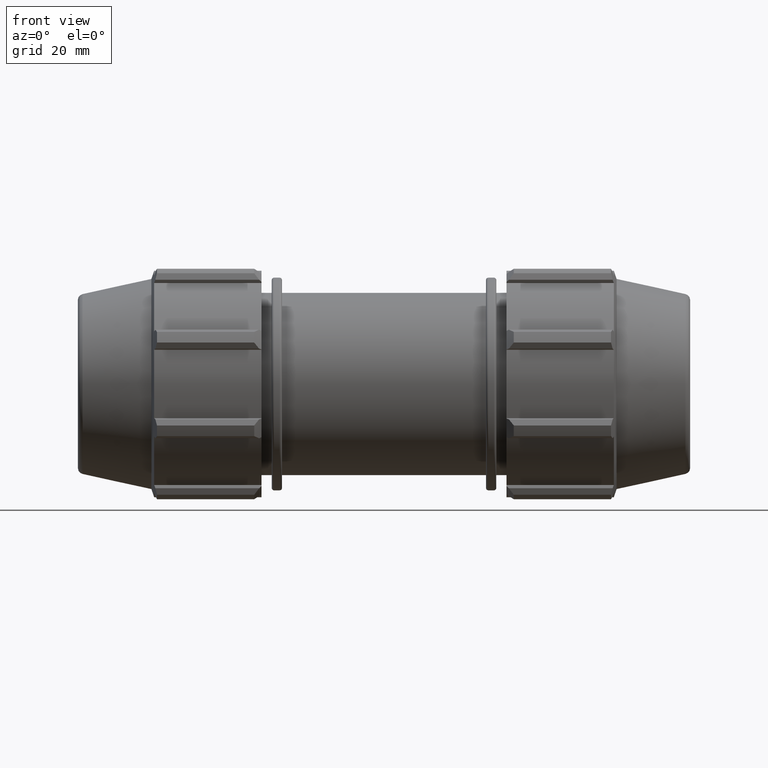
[diagram: clean part render]
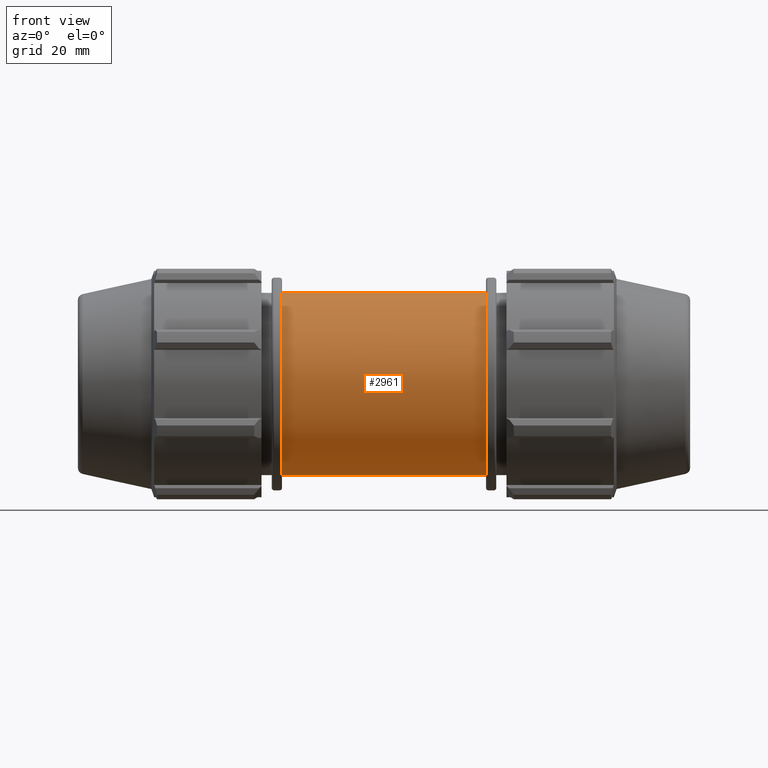
[diagram: same view with one face highlighted and labeled with its STEP entity id]
A machine part, front view. The second image highlights one B-rep face of the part: STEP entity #2961.
In plain terms, the highlighted cylindrical surface (bore or boss wall) has radius 30.75 mm, axis along (1, 0, 0).
Its self-contained STEP definition (entity closure, byte-faithful):
#219=CIRCLE('',#3083,30.75);
#275=CIRCLE('',#3213,30.75);
#747=FACE_BOUND('',#1100,.T.);
#748=FACE_BOUND('',#1101,.T.);
#904=FACE_OUTER_BOUND('',#1099,.T.);
#1099=EDGE_LOOP('',(#2546));
#1100=EDGE_LOOP('',(#2547));
#1101=EDGE_LOOP('',(#2548));
#1131=B_SPLINE_CURVE_WITH_KNOTS('',3,(#4097,#4098,#4099,#4100,#4101,#4102,
#4103,#4104,#4105,#4106,#4107,#4108,#4109,#4110,#4111,#4112,#4113,#4114,
#4115,#4116,#4117,#4118,#4119,#4120,#4121,#4122,#4123,#4124,#4125,#4126,
#4127,#4128,#4129,#4130,#4131,#4132,#4133,#4134,#4135,#4136,#4137,#4138,
#4139,#4140,#4141,#4142,#4143,#4144,#4145,#4146),.UNSPECIFIED.,.T.,.F.,
(4,2,2,2,2,2,2,2,2,2,2,2,2,2,2,2,2,2,2,2,2,2,2,2,4),(0.,0.28165496994686,
0.56330993989372,1.12661987978744,1.68868944529411,1.96972422804745,2.25075901080079,
2.53179379355412,2.81282857630746,3.37489814181414,3.93820808170786,4.21986305165472,
4.50151802160158,4.78317299154843,5.0648279614953,5.62813790138901,6.19020746689569,
6.47124224964903,6.75227703240236,7.0333118151557,7.31434659790904,7.87641616341571,
8.43972610330943,8.72138107325629,9.00303604320315),.UNSPECIFIED.);
#1140=VERTEX_POINT('',#4096);
#1264=VERTEX_POINT('',#4553);
#1392=VERTEX_POINT('',#5012);
#1418=EDGE_CURVE('',#1140,#1140,#1131,.T.);
#1589=EDGE_CURVE('',#1264,#1264,#219,.T.);
#1782=EDGE_CURVE('',#1392,#1392,#275,.T.);
#2546=ORIENTED_EDGE('',*,*,#1589,.T.);
#2547=ORIENTED_EDGE('',*,*,#1418,.T.);
#2548=ORIENTED_EDGE('',*,*,#1782,.F.);
#2644=CYLINDRICAL_SURFACE('',#3238,30.75);
#2961=ADVANCED_FACE('',(#904,#747,#748),#2644,.T.);
#3083=AXIS2_PLACEMENT_3D('',#4554,#3560,#3561);
#3213=AXIS2_PLACEMENT_3D('',#5013,#3925,#3926);
#3238=AXIS2_PLACEMENT_3D('',#5042,#3975,#3976);
#3560=DIRECTION('center_axis',(1.,-5.30313939382931E-16,0.));
#3561=DIRECTION('ref_axis',(0.,0.,-1.));
#3925=DIRECTION('center_axis',(1.,5.30313939382931E-16,0.));
#3926=DIRECTION('ref_axis',(0.,0.,-1.));
#3975=DIRECTION('center_axis',(1.,5.30313939382931E-16,0.));
#3976=DIRECTION('ref_axis',(-8.54486543630854E-16,1.,0.));
#4096=CARTESIAN_POINT('',(-6.93889390390723E-15,27.0258692320894,-14.6685));
#4097=CARTESIAN_POINT('Ctrl Pts',(-6.93889390390723E-15,27.0258692320894,
-14.6685));
#4098=CARTESIAN_POINT('Ctrl Pts',(0.938849899822859,27.0258692320894,-14.6685));
#4099=CARTESIAN_POINT('Ctrl Pts',(1.90362659508424,27.0762130927968,-14.5769390996409));
#4100=CARTESIAN_POINT('Ctrl Pts',(3.81166225548171,27.2768453091496,-14.1979638950625));
#4101=CARTESIAN_POINT('Ctrl Pts',(4.75498317307376,27.4268231541024,-13.9106971982772));
#4102=CARTESIAN_POINT('Ctrl Pts',(7.45648566533071,27.9801569583989,-12.781850995818));
#4103=CARTESIAN_POINT('Ctrl Pts',(9.08512850123605,28.4867214211068,-11.6592631384337));
#4104=CARTESIAN_POINT('Ctrl Pts',(11.6564290941122,29.4080333972745,-9.08796254555755));
#4105=CARTESIAN_POINT('Ctrl Pts',(12.7811150082763,29.888136648976,-7.45833325292386));
#4106=CARTESIAN_POINT('Ctrl Pts',(13.9112163874973,30.3941786705667,-4.75369753698029));
#4107=CARTESIAN_POINT('Ctrl Pts',(14.1986045634459,30.5281844023057,-3.80931893387199));
#4108=CARTESIAN_POINT('Ctrl Pts',(14.5773091260338,30.7061494281883,-1.90087899051006));
#4109=CARTESIAN_POINT('Ctrl Pts',(14.6685,30.75,-0.936782609177792));
#4110=CARTESIAN_POINT('Ctrl Pts',(14.6685,30.75,0.936782609177788));
#4111=CARTESIAN_POINT('Ctrl Pts',(14.5773091260338,30.7061494281883,1.90087899051006));
#4112=CARTESIAN_POINT('Ctrl Pts',(14.1986045634459,30.5281844023057,3.80931893387199));
#4113=CARTESIAN_POINT('Ctrl Pts',(13.9112163874973,30.3941786705667,4.75369753698028));
#4114=CARTESIAN_POINT('Ctrl Pts',(12.7811150082763,29.888136648976,7.45833325292385));
#4115=CARTESIAN_POINT('Ctrl Pts',(11.6564290941122,29.4080333972745,9.08796254555755));
#4116=CARTESIAN_POINT('Ctrl Pts',(9.08512850123605,28.4867214211068,11.6592631384337));
#4117=CARTESIAN_POINT('Ctrl Pts',(7.45648566533071,27.9801569583989,12.781850995818));
#4118=CARTESIAN_POINT('Ctrl Pts',(4.75498317307377,27.4268231541025,13.9106971982772));
#4119=CARTESIAN_POINT('Ctrl Pts',(3.81166225548172,27.2768453091496,14.1979638950625));
#4120=CARTESIAN_POINT('Ctrl Pts',(1.90362659508424,27.0762130927968,14.5769390996409));
#4121=CARTESIAN_POINT('Ctrl Pts',(0.938849899822861,27.0258692320894,14.6685));
#4122=CARTESIAN_POINT('Ctrl Pts',(-0.938849899822871,27.0258692320894,14.6685));
#4123=CARTESIAN_POINT('Ctrl Pts',(-1.90362659508425,27.0762130927968,14.5769390996409));
#4124=CARTESIAN_POINT('Ctrl Pts',(-3.81166225548172,27.2768453091496,14.1979638950625));
#4125=CARTESIAN_POINT('Ctrl Pts',(-4.75498317307377,27.4268231541025,13.9106971982772));
#4126=CARTESIAN_POINT('Ctrl Pts',(-7.45648566533071,27.9801569583989,12.781850995818));
#4127=CARTESIAN_POINT('Ctrl Pts',(-9.08512850123606,28.4867214211068,11.6592631384337));
#4128=CARTESIAN_POINT('Ctrl Pts',(-11.6564290941122,29.4080333972745,9.08796254555755));
#4129=CARTESIAN_POINT('Ctrl Pts',(-12.7811150082763,29.888136648976,7.45833325292386));
#4130=CARTESIAN_POINT('Ctrl Pts',(-13.9112163874973,30.3941786705667,4.75369753698029));
#4131=CARTESIAN_POINT('Ctrl Pts',(-14.1986045634459,30.5281844023056,3.80931893387199));
#4132=CARTESIAN_POINT('Ctrl Pts',(-14.5773091260338,30.7061494281883,1.90087899051006));
#4133=CARTESIAN_POINT('Ctrl Pts',(-14.6685,30.75,0.936782609177793));
#4134=CARTESIAN_POINT('Ctrl Pts',(-14.6685,30.75,-0.936782609177786));
#4135=CARTESIAN_POINT('Ctrl Pts',(-14.5773091260338,30.7061494281883,-1.90087899051006));
#4136=CARTESIAN_POINT('Ctrl Pts',(-14.1986045634459,30.5281844023056,-3.80931893387199));
#4137=CARTESIAN_POINT('Ctrl Pts',(-13.9112163874973,30.3941786705667,-4.75369753698028));
#4138=CARTESIAN_POINT('Ctrl Pts',(-12.7811150082763,29.888136648976,-7.45833325292386));
#4139=CARTESIAN_POINT('Ctrl Pts',(-11.6564290941122,29.4080333972745,-9.08796254555754));
#4140=CARTESIAN_POINT('Ctrl Pts',(-9.08512850123607,28.4867214211068,-11.6592631384337));
#4141=CARTESIAN_POINT('Ctrl Pts',(-7.45648566533073,27.9801569583989,-12.781850995818));
#4142=CARTESIAN_POINT('Ctrl Pts',(-4.75498317307378,27.4268231541024,-13.9106971982772));
#4143=CARTESIAN_POINT('Ctrl Pts',(-3.81166225548173,27.2768453091496,-14.1979638950625));
#4144=CARTESIAN_POINT('Ctrl Pts',(-1.90362659508425,27.0762130927968,-14.5769390996409));
#4145=CARTESIAN_POINT('Ctrl Pts',(-0.938849899822874,27.0258692320894,-14.6685));
#4146=CARTESIAN_POINT('Ctrl Pts',(-6.38378239159465E-15,27.0258692320894,
-14.6685));
#4553=CARTESIAN_POINT('',(-34.1666666666667,30.75,0.));
#4554=CARTESIAN_POINT('Origin',(-34.1666666666667,1.81190595955835E-14,
0.));
#5012=CARTESIAN_POINT('',(34.1666666666667,30.75,0.));
#5013=CARTESIAN_POINT('Origin',(34.1666666666667,1.81190595955835E-14,0.));
#5042=CARTESIAN_POINT('Origin',(17.0833333333333,9.05952979779173E-15,0.));